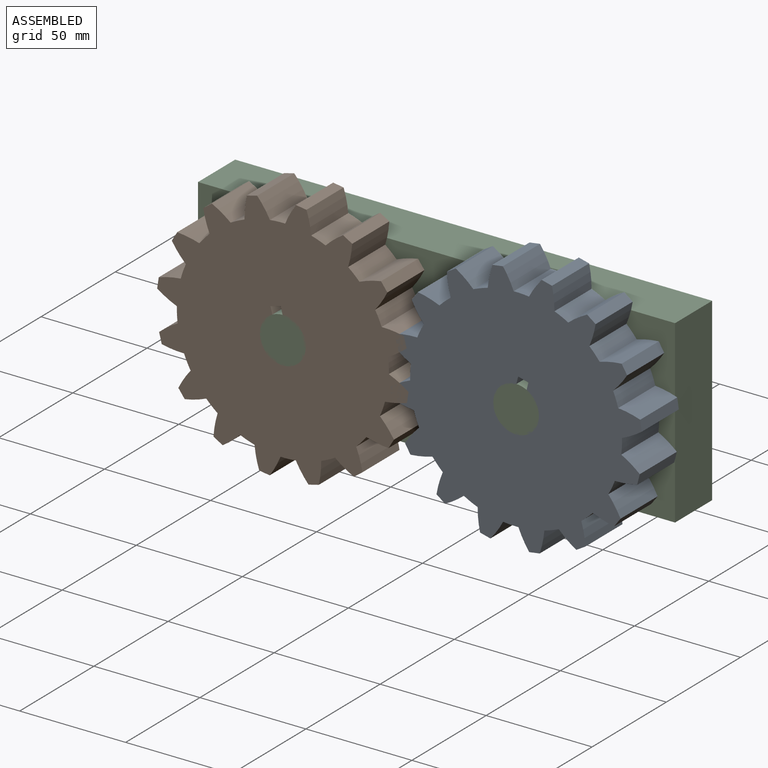
[diagram: assembled view]
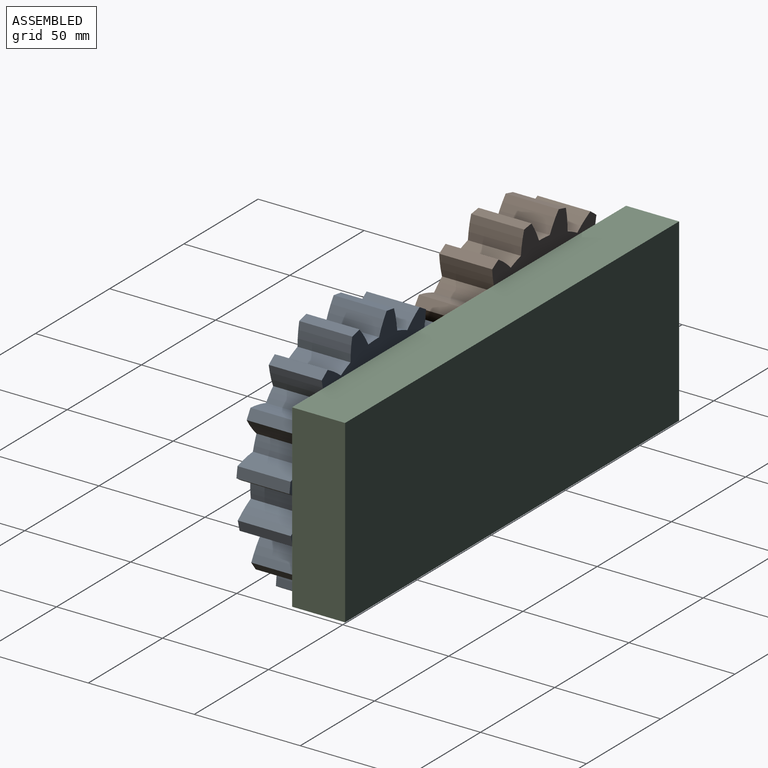
[diagram: assembled view, second angle]
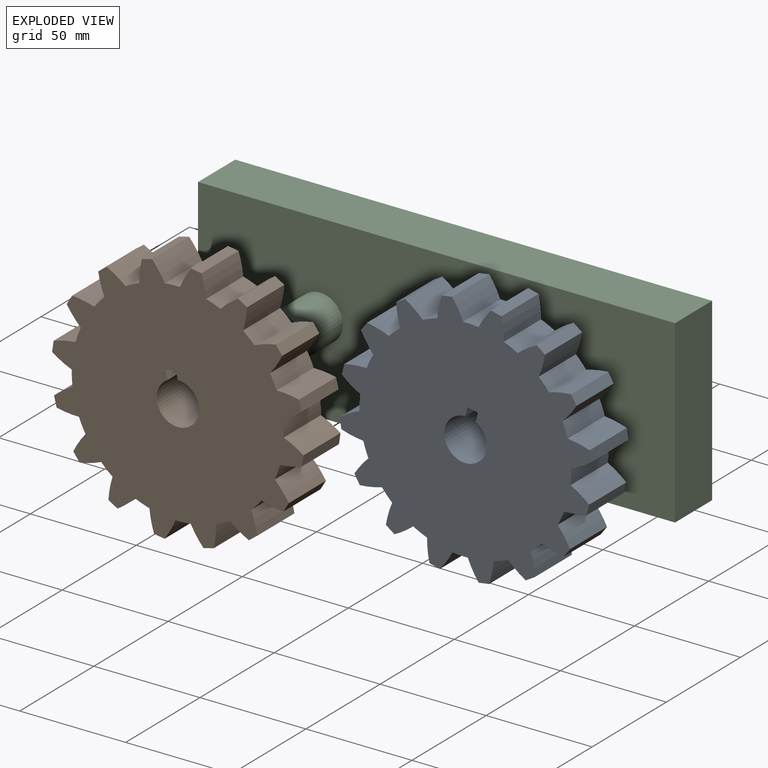
[diagram: exploded view]
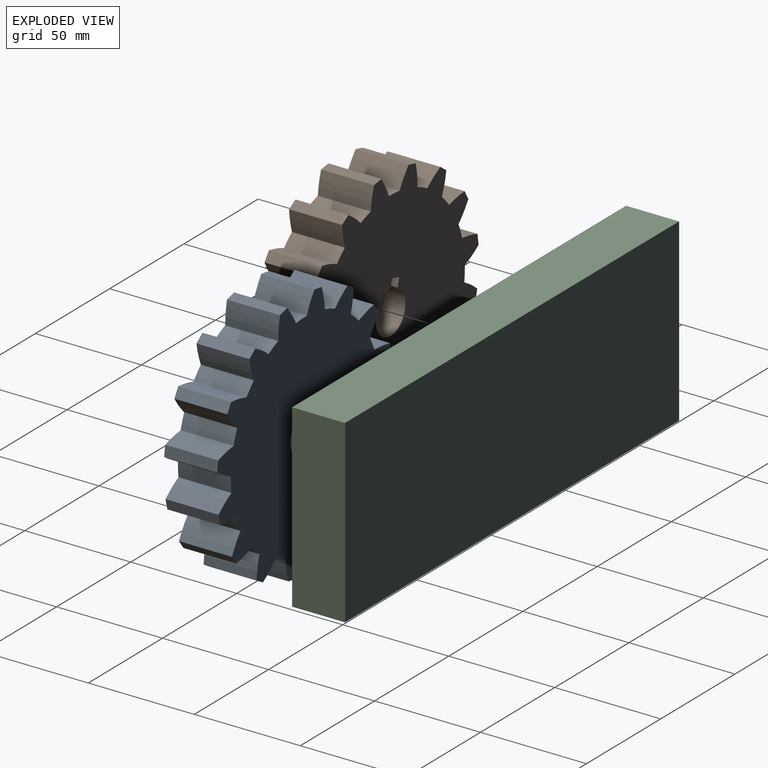
[diagram: exploded view, second angle]
ASSEMBLY  parts=3 mates=2
PART A: 70 faces, bbox 119.1x25x119.1 mm
  f0: plane 25x5mm, normal (0,0,-1), area 125mm2, adj f1,f67,f68,f69
  f1: plane 25x4.32mm, normal (-1,0,0), area 107.9mm2, adj f0,f2,f68,f69
  f2: cylinder r=10mm len=25mm, axis (0,1,0), area 1444.5mm2, adj f1,f67,f68,f69
  f3: plane 25x5mm, normal (1,0,0), area 125mm2, adj f4,f66,f68,f69
  f4: cylinder r=44.86mm len=25mm, axis (0,1,0), area 265.5mm2, adj f3,f5,f68,f69
  f5: cylinder r=50mm len=25mm, axis (0,1,0), area 180.7mm2, adj f4,f6,f68,f69
  f6: cylinder r=44.86mm len=25mm, axis (0,1,0), area 265.5mm2, adj f5,f7,f68,f69
  f7: plane 25x4.62mm, normal (0.92,0,0.38), area 125mm2, adj f6,f8,f68,f69
  f8: cylinder r=44.86mm len=25mm, axis (0,1,0), area 265.5mm2, adj f7,f9,f68,f69
  f9: cylinder r=50mm len=25mm, axis (0,1,0), area 180.7mm2, adj f8,f10,f68,f69
  f10: cylinder r=44.86mm len=25mm, axis (0,1,0), area 265.5mm2, adj f9,f11,f68,f69
  f11: plane 25x3.54mm, normal (0.71,0,0.71), area 125mm2, adj f10,f12,f68,f69
  f12: cylinder r=44.86mm len=25mm, axis (0,1,0), area 265.5mm2, adj f11,f13,f68,f69
  f13: cylinder r=50mm len=25mm, axis (0,1,0), area 180.7mm2, adj f12,f14,f68,f69
  f14: cylinder r=44.86mm len=25mm, axis (0,1,0), area 265.5mm2, adj f13,f15,f68,f69
  f15: plane 25x4.62mm, normal (0.38,0,0.92), area 125mm2, adj f14,f16,f68,f69
  f16: cylinder r=44.86mm len=25mm, axis (0,1,0), area 265.5mm2, adj f15,f17,f68,f69
  f17: cylinder r=50mm len=25mm, axis (0,1,0), area 180.7mm2, adj f16,f18,f68,f69
  f18: cylinder r=44.86mm len=25mm, axis (0,1,0), area 265.5mm2, adj f17,f19,f68,f69
  f19: plane 25x5mm, normal (0,0,1), area 125mm2, adj f18,f20,f68,f69
  f20: cylinder r=44.86mm len=25mm, axis (0,1,0), area 265.5mm2, adj f19,f21,f68,f69
  f21: cylinder r=50mm len=25mm, axis (0,1,0), area 180.7mm2, adj f20,f22,f68,f69
  f22: cylinder r=44.86mm len=25mm, axis (0,1,0), area 265.5mm2, adj f21,f23,f68,f69
  f23: plane 25x4.62mm, normal (-0.38,0,0.92), area 125mm2, adj f22,f24,f68,f69
  f24: cylinder r=44.86mm len=25mm, axis (0,1,0), area 265.5mm2, adj f23,f25,f68,f69
  f25: cylinder r=50mm len=25mm, axis (0,1,0), area 180.7mm2, adj f24,f26,f68,f69
  f26: cylinder r=44.86mm len=25mm, axis (0,1,0), area 265.5mm2, adj f25,f27,f68,f69
  f27: plane 25x3.54mm, normal (-0.71,0,0.71), area 125mm2, adj f26,f28,f68,f69
  f28: cylinder r=44.86mm len=25mm, axis (0,1,0), area 265.5mm2, adj f27,f29,f68,f69
  f29: cylinder r=50mm len=25mm, axis (0,1,0), area 180.7mm2, adj f28,f30,f68,f69
  f30: cylinder r=44.86mm len=25mm, axis (0,1,0), area 265.5mm2, adj f29,f31,f68,f69
  f31: plane 25x4.62mm, normal (-0.92,0,0.38), area 125mm2, adj f30,f32,f68,f69
  f32: cylinder r=44.86mm len=25mm, axis (0,1,0), area 265.5mm2, adj f31,f33,f68,f69
  f33: cylinder r=50mm len=25mm, axis (0,1,0), area 180.7mm2, adj f32,f34,f68,f69
  f34: cylinder r=44.86mm len=25mm, axis (0,1,0), area 265.5mm2, adj f33,f35,f68,f69
  f35: plane 25x5mm, normal (-1,0,0), area 125mm2, adj f34,f36,f68,f69
  f36: cylinder r=44.86mm len=25mm, axis (0,1,0), area 265.5mm2, adj f35,f37,f68,f69
  f37: cylinder r=50mm len=25mm, axis (0,1,0), area 180.7mm2, adj f36,f38,f68,f69
  f38: cylinder r=44.86mm len=25mm, axis (0,1,0), area 265.5mm2, adj f37,f39,f68,f69
  f39: plane 25x4.62mm, normal (-0.92,0,-0.38), area 125mm2, adj f38,f40,f68,f69
  f40: cylinder r=44.86mm len=25mm, axis (0,1,0), area 265.5mm2, adj f39,f41,f68,f69
  f41: cylinder r=50mm len=25mm, axis (0,1,0), area 180.7mm2, adj f40,f42,f68,f69
  f42: cylinder r=44.86mm len=25mm, axis (0,1,0), area 265.5mm2, adj f41,f43,f68,f69
  f43: plane 25x3.54mm, normal (-0.71,0,-0.71), area 125mm2, adj f42,f44,f68,f69
  f44: cylinder r=44.86mm len=25mm, axis (0,1,0), area 265.5mm2, adj f43,f45,f68,f69
  f45: cylinder r=50mm len=25mm, axis (0,1,0), area 180.7mm2, adj f44,f46,f68,f69
  f46: cylinder r=44.86mm len=25mm, axis (0,1,0), area 265.5mm2, adj f45,f47,f68,f69
  f47: plane 25x4.62mm, normal (-0.38,0,-0.92), area 125mm2, adj f46,f48,f68,f69
  f48: cylinder r=44.86mm len=25mm, axis (0,1,0), area 265.5mm2, adj f47,f49,f68,f69
  f49: cylinder r=50mm len=25mm, axis (0,1,0), area 180.7mm2, adj f48,f50,f68,f69
  f50: cylinder r=44.86mm len=25mm, axis (0,1,0), area 265.5mm2, adj f49,f51,f68,f69
  f51: plane 25x5mm, normal (0,0,-1), area 125mm2, adj f50,f52,f68,f69
  f52: cylinder r=44.86mm len=25mm, axis (0,1,0), area 265.5mm2, adj f51,f53,f68,f69
  f53: cylinder r=50mm len=25mm, axis (0,1,0), area 180.7mm2, adj f52,f54,f68,f69
  f54: cylinder r=44.86mm len=25mm, axis (0,1,0), area 265.5mm2, adj f53,f55,f68,f69
  f55: plane 25x4.62mm, normal (0.38,0,-0.92), area 125mm2, adj f54,f56,f68,f69
  f56: cylinder r=44.86mm len=25mm, axis (0,1,0), area 265.5mm2, adj f55,f57,f68,f69
  f57: cylinder r=50mm len=25mm, axis (0,1,0), area 180.7mm2, adj f56,f58,f68,f69
  f58: cylinder r=44.86mm len=25mm, axis (0,1,0), area 265.5mm2, adj f57,f59,f68,f69
  f59: plane 25x3.54mm, normal (0.71,0,-0.71), area 125mm2, adj f58,f60,f68,f69
  f60: cylinder r=44.86mm len=25mm, axis (0,1,0), area 265.5mm2, adj f59,f61,f68,f69
  f61: cylinder r=50mm len=25mm, axis (0,1,0), area 180.7mm2, adj f60,f62,f68,f69
  f62: cylinder r=44.86mm len=25mm, axis (0,1,0), area 265.5mm2, adj f61,f63,f68,f69
  f63: plane 25x4.62mm, normal (0.92,0,-0.38), area 125mm2, adj f62,f64,f68,f69
  f64: cylinder r=44.86mm len=25mm, axis (0,1,0), area 265.5mm2, adj f63,f65,f68,f69
  f65: cylinder r=50mm len=25mm, axis (0,1,0), area 180.7mm2, adj f64,f66,f68,f69
  f66: cylinder r=44.86mm len=25mm, axis (0,1,0), area 265.5mm2, adj f3,f65,f68,f69
  f67: plane 25x4.32mm, normal (1,0,0), area 107.9mm2, adj f0,f2,f68,f69
  f68: plane 119.1x119.1mm, normal (0,-1,0), area 8920.1mm2, adj f0,f1,f2,f3,f4,f5,f6,f7
  f69: plane 119.1x119.1mm, normal (0,1,0), area 8920.1mm2, adj f0,f1,f2,f3,f4,f5,f6,f7
PART B: same geometry as A
PART C: 10 faces, bbox 225x50x85 mm
  f0: plane 225x25mm, normal (0,0,-1), area 5625mm2, adj f1,f3,f4,f5
  f1: plane 85x25mm, normal (1,0,0), area 2125mm2, adj f0,f2,f4,f5
  f2: plane 225x25mm, normal (0,0,1), area 5625mm2, adj f1,f3,f4,f5
  f3: plane 85x25mm, normal (-1,0,0), area 2125mm2, adj f0,f2,f4,f5
  f4: plane 225x85mm, normal (0,-1,0), area 18394.5mm2, adj f0,f1,f2,f3,f6,f8
  f5: plane 225x85mm, normal (0,1,0), area 19125mm2, adj f0,f1,f2,f3
  f6: cylinder r=10.78mm len=25mm, axis (0,1,0), area 1693.8mm2, adj f4,f7
  f7: plane 21.57x21.57mm, normal (0,-1,0), area 365.3mm2, adj f6
  f8: cylinder r=10.78mm len=25mm, axis (0,1,0), area 1693.8mm2, adj f4,f9
  f9: plane 21.57x21.57mm, normal (0,-1,0), area 365.3mm2, adj f8
PLACE A rot(axis=(0,1,0),14.1deg) t=(76.6,-12.5,200.06)mm
PLACE B rot(axis=(0,-1,0),14.1deg) t=(-33.4,-12.5,200.06)mm
PLACE C t=(-232.31,12.5,189.93)mm fixed
MATE revolute B.f2 <-> C.f6  axis (0,-1,0) through (-33.4,-25,200.06)mm
MATE revolute A.f2 <-> C.f8  axis (0,-1,0) through (76.6,-25,200.06)mm
